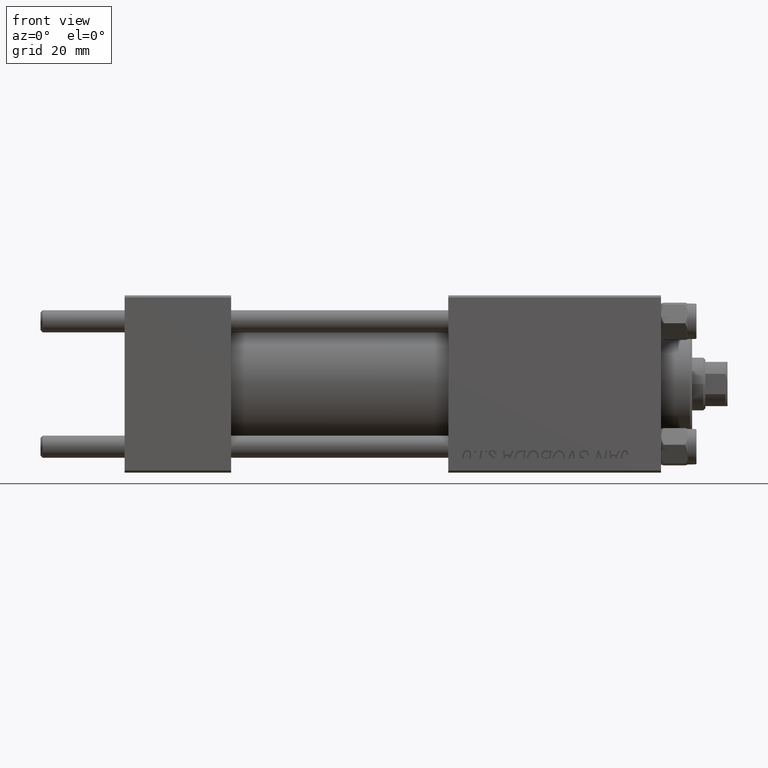
[diagram: clean part render]
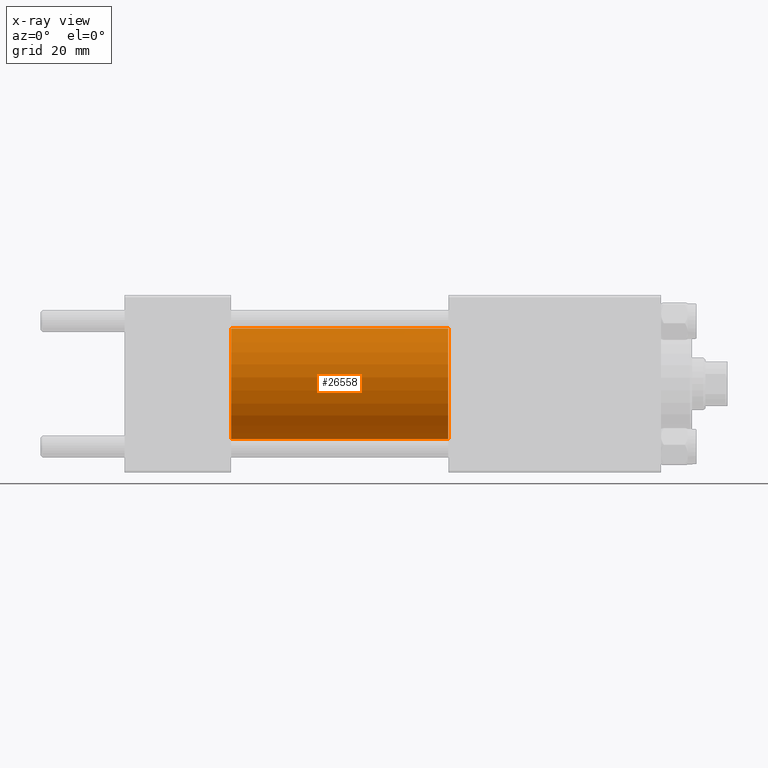
[diagram: x-ray — body ghosted, one internal face saturated and labeled with its STEP entity id]
A machine part, front view, then the same camera in x-ray: the body is ghosted and one INTERNAL B-rep face — a face not visible from any outside direction — is saturated and labeled: STEP entity #26558.
In plain terms, the highlighted cylindrical surface (partial cylindrical patch) has radius 12.5 mm, axis along (-1, -0, -0).
Its self-contained STEP definition (entity closure, byte-faithful):
#367 = EDGE_LOOP ( 'NONE', ( #21795, #29046, #20035, #13939 ) ) ;
#783 = DIRECTION ( 'NONE',  ( 0.000000000000000000, 0.000000000000000000, -1.000000000000000000 ) ) ;
#811 = EDGE_CURVE ( 'NONE', #43133, #45242, #41358, .T. ) ;
#1177 = DIRECTION ( 'NONE',  ( -1.000000000000000000, -0.000000000000000000, -0.000000000000000000 ) ) ;
#1920 = LINE ( 'NONE', #24896, #43354 ) ;
#4115 = CARTESIAN_POINT ( 'NONE',  ( 24.00000000000000000, 0.000000000000000000, 12.49999999999999645 ) ) ;
#4323 = DIRECTION ( 'NONE',  ( 0.000000000000000000, 0.000000000000000000, -1.000000000000000000 ) ) ;
#7822 = CIRCLE ( 'NONE', #42499, 12.49999999999999645 ) ;
#8186 = LINE ( 'NONE', #38512, #23749 ) ;
#8663 = EDGE_CURVE ( 'NONE', #43133, #46617, #8186, .T. ) ;
#8916 = DIRECTION ( 'NONE',  ( -1.000000000000000000, -0.000000000000000000, -0.000000000000000000 ) ) ;
#11039 = VERTEX_POINT ( 'NONE', #48453 ) ;
#11487 = DIRECTION ( 'NONE',  ( -1.000000000000000000, -0.000000000000000000, -0.000000000000000000 ) ) ;
#13202 = CYLINDRICAL_SURFACE ( 'NONE', #15052, 12.49999999999999645 ) ;
#13939 = ORIENTED_EDGE ( 'NONE', *, *, #8663, .F. ) ;
#14148 = EDGE_CURVE ( 'NONE', #46617, #11039, #7822, .T. ) ;
#15052 = AXIS2_PLACEMENT_3D ( 'NONE', #39974, #8916, #31901 ) ;
#16429 = CARTESIAN_POINT ( 'NONE',  ( 24.00000000000000000, 0.000000000000000000, 0.000000000000000000 ) ) ;
#20035 = ORIENTED_EDGE ( 'NONE', *, *, #14148, .F. ) ;
#21795 = ORIENTED_EDGE ( 'NONE', *, *, #811, .T. ) ;
#23022 = DIRECTION ( 'NONE',  ( 1.000000000000000000, 0.000000000000000000, 0.000000000000000000 ) ) ;
#23749 = VECTOR ( 'NONE', #11487, 1000.000000000000000 ) ;
#24896 = CARTESIAN_POINT ( 'NONE',  ( 73.00000000000001421, 1.530808498934191127E-15, -12.49999999999999645 ) ) ;
#26558 = ADVANCED_FACE ( 'NONE', ( #32397 ), #13202, .F. ) ;
#29046 = ORIENTED_EDGE ( 'NONE', *, *, #30489, .T. ) ;
#29269 = AXIS2_PLACEMENT_3D ( 'NONE', #38681, #23022, #783 ) ;
#30489 = EDGE_CURVE ( 'NONE', #45242, #11039, #1920, .T. ) ;
#31901 = DIRECTION ( 'NONE',  ( 0.000000000000000000, 0.000000000000000000, 1.000000000000000000 ) ) ;
#32397 = FACE_OUTER_BOUND ( 'NONE', #367, .T. ) ;
#32571 = CARTESIAN_POINT ( 'NONE',  ( 73.00000000000001421, 0.000000000000000000, 12.49999999999999645 ) ) ;
#34244 = CARTESIAN_POINT ( 'NONE',  ( 73.00000000000001421, 1.530808498934191127E-15, -12.49999999999999645 ) ) ;
#38512 = CARTESIAN_POINT ( 'NONE',  ( 73.00000000000001421, 0.000000000000000000, 12.49999999999999645 ) ) ;
#38681 = CARTESIAN_POINT ( 'NONE',  ( 73.00000000000001421, 0.000000000000000000, 0.000000000000000000 ) ) ;
#38915 = DIRECTION ( 'NONE',  ( 1.000000000000000000, 0.000000000000000000, 0.000000000000000000 ) ) ;
#39974 = CARTESIAN_POINT ( 'NONE',  ( 73.00000000000001421, 0.000000000000000000, 0.000000000000000000 ) ) ;
#41358 = CIRCLE ( 'NONE', #29269, 12.49999999999999645 ) ;
#42499 = AXIS2_PLACEMENT_3D ( 'NONE', #16429, #38915, #4323 ) ;
#43133 = VERTEX_POINT ( 'NONE', #32571 ) ;
#43354 = VECTOR ( 'NONE', #1177, 1000.000000000000000 ) ;
#45242 = VERTEX_POINT ( 'NONE', #34244 ) ;
#46617 = VERTEX_POINT ( 'NONE', #4115 ) ;
#48453 = CARTESIAN_POINT ( 'NONE',  ( 24.00000000000000000, 1.530808498934191127E-15, -12.49999999999999645 ) ) ;